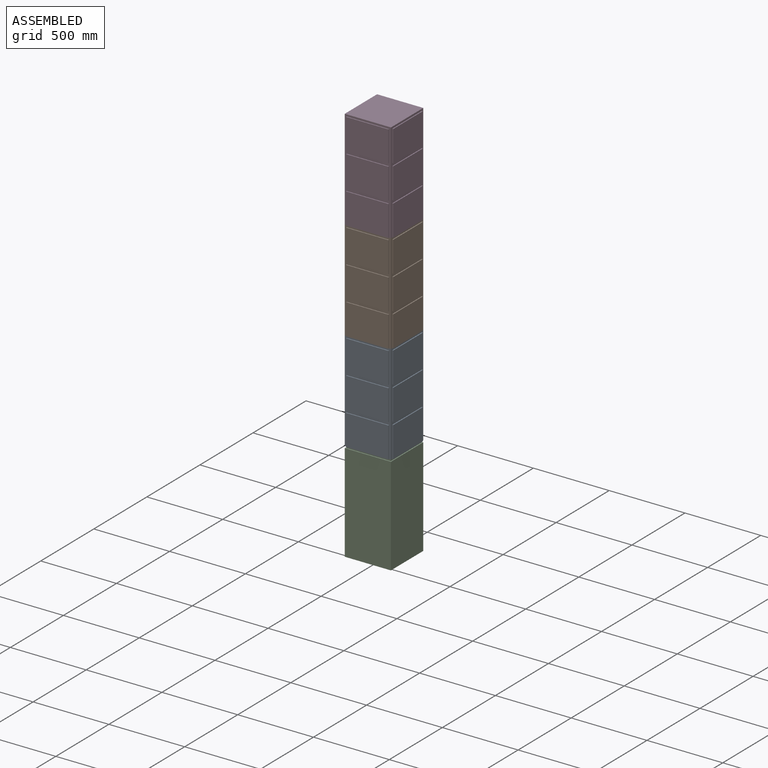
[diagram: assembled view]
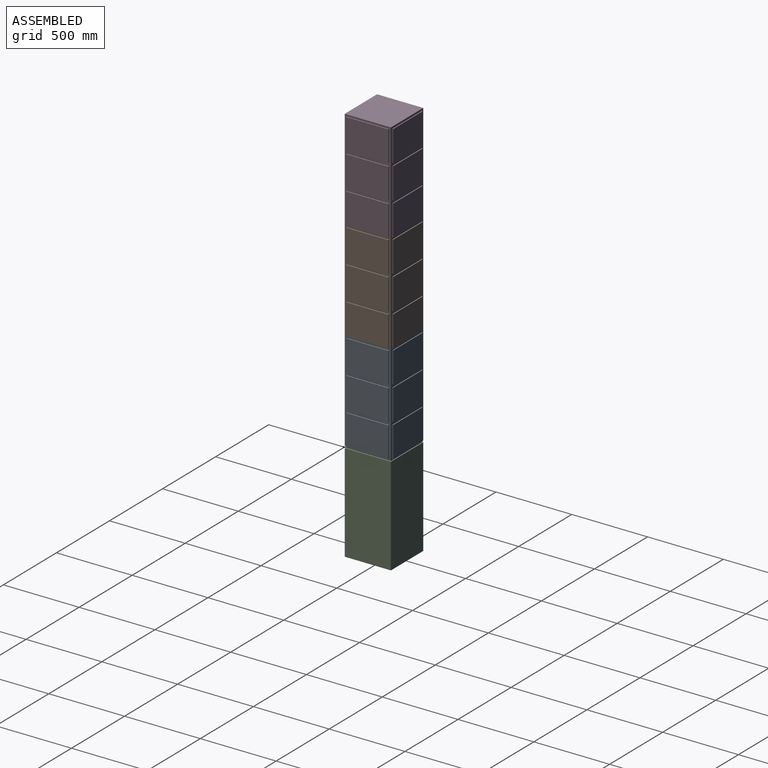
[diagram: assembled view, second angle]
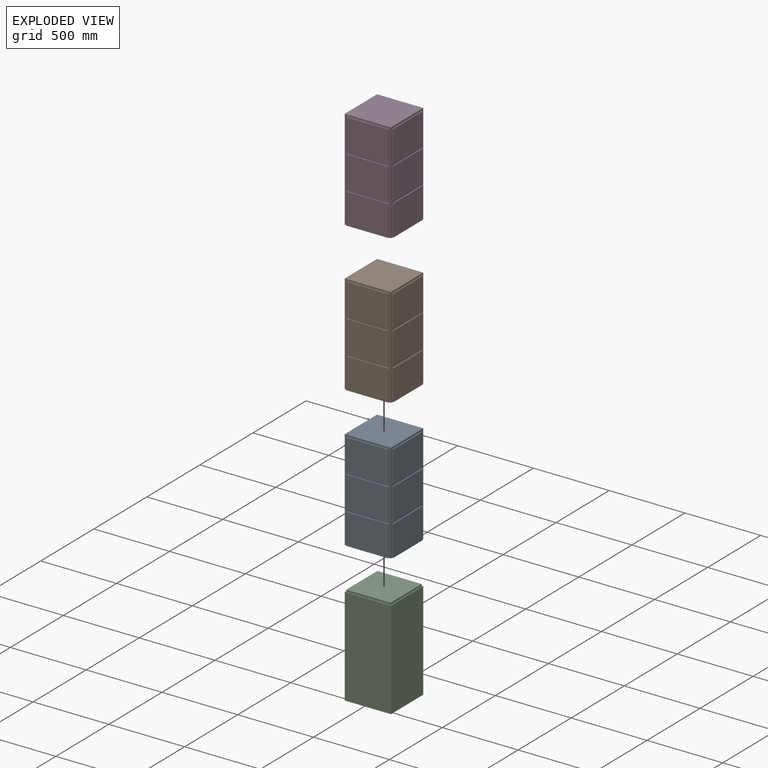
[diagram: exploded view]
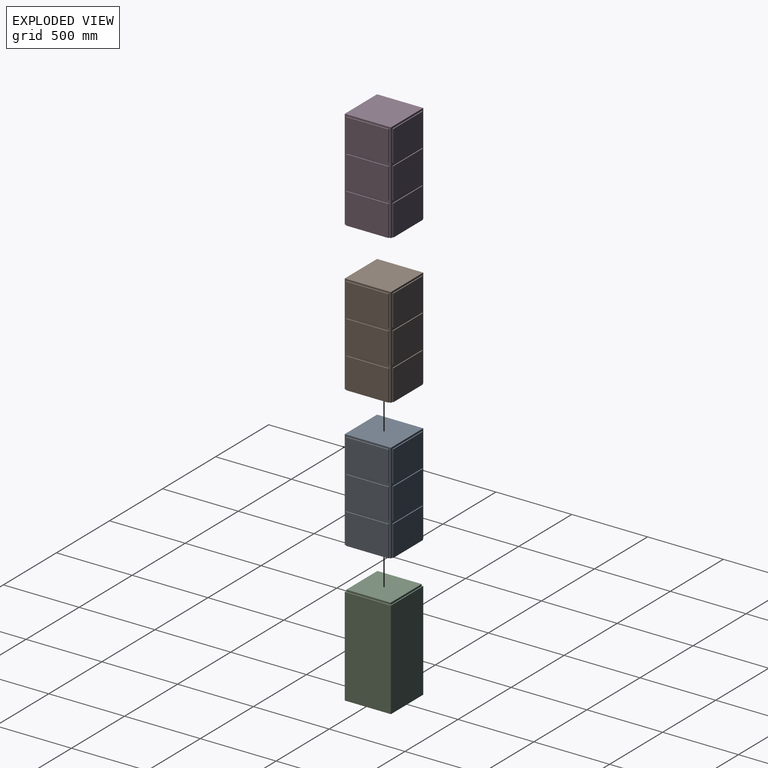
[diagram: exploded view, second angle]
ASSEMBLY  parts=4 mates=3
PART A: 62 faces, bbox 317.5x317.5x660.4 mm
  f0: plane 279.4x6.35mm, normal (0,0,1), area 1774.2mm2, adj f1,f2,f3,f38
  f1: plane 203.2x6.35mm, normal (0,1,0), area 1290.3mm2, adj f0,f3,f38,f41
  f2: plane 203.2x6.35mm, normal (0,-1,0), area 1290.3mm2, adj f0,f3,f38,f41
  f3: plane 279.4x203.2mm, normal (-1,0,0), area 56774.1mm2, adj f0,f1,f2,f41
  f4: plane 279.4x6.35mm, normal (0,0,1), area 1774.2mm2, adj f5,f7,f8,f38
  f5: plane 203.2x6.35mm, normal (0,1,0), area 1290.3mm2, adj f4,f6,f8,f38
  f6: plane 279.4x6.35mm, normal (0,0,-1), area 1774.2mm2, adj f5,f7,f8,f38
  f7: plane 203.2x6.35mm, normal (0,-1,0), area 1290.3mm2, adj f4,f6,f8,f38
  f8: plane 279.4x203.2mm, normal (-1,0,0), area 56774.1mm2, adj f4,f5,f6,f7
  f9: plane 279.4x6.35mm, normal (0,0,1), area 1774.2mm2, adj f10,f11,f12,f18
  f10: plane 203.2x6.35mm, normal (1,0,0), area 1290.3mm2, adj f9,f12,f18,f41
  f11: plane 203.2x6.35mm, normal (-1,0,0), area 1290.3mm2, adj f9,f12,f18,f41
  f12: plane 279.4x203.2mm, normal (0,1,0), area 56774.1mm2, adj f9,f10,f11,f41
  f13: plane 279.4x6.35mm, normal (0,0,1), area 1774.2mm2, adj f14,f16,f17,f18
  f14: plane 203.2x6.35mm, normal (1,0,0), area 1290.3mm2, adj f13,f15,f17,f18
  f15: plane 279.4x6.35mm, normal (0,0,-1), area 1774.2mm2, adj f14,f16,f17,f18
  f16: plane 203.2x6.35mm, normal (-1,0,0), area 1290.3mm2, adj f13,f15,f17,f18
  f17: plane 279.4x203.2mm, normal (0,1,0), area 56774.1mm2, adj f13,f14,f15,f16
  f18: plane 660.4x304.8mm, normal (0,1,0), area 30967.7mm2, adj f9,f10,f11,f13,f14,f15,f16,f28
  f19: plane 279.4x6.35mm, normal (0,0,1), area 1774.2mm2, adj f20,f21,f22,f28
  f20: plane 203.2x6.35mm, normal (0,-1,0), area 1290.3mm2, adj f19,f22,f28,f41
  f21: plane 203.2x6.35mm, normal (0,1,0), area 1290.3mm2, adj f19,f22,f28,f41
  f22: plane 279.4x203.2mm, normal (1,0,0), area 56774.1mm2, adj f19,f20,f21,f41
  f23: plane 279.4x6.35mm, normal (0,0,1), area 1774.2mm2, adj f24,f26,f27,f28
  f24: plane 203.2x6.35mm, normal (0,-1,0), area 1290.3mm2, adj f23,f25,f27,f28
  f25: plane 279.4x6.35mm, normal (0,0,-1), area 1774.2mm2, adj f24,f26,f27,f28
  f26: plane 203.2x6.35mm, normal (0,1,0), area 1290.3mm2, adj f23,f25,f27,f28
  f27: plane 279.4x203.2mm, normal (1,0,0), area 56774.1mm2, adj f23,f24,f25,f26
  f28: plane 660.4x304.8mm, normal (1,0,0), area 30967.7mm2, adj f18,f19,f20,f21,f23,f24,f25,f26
  f29: plane 279.4x6.35mm, normal (0,0,1), area 1774.2mm2, adj f30,f31,f32,f39
  f30: plane 203.2x6.35mm, normal (-1,0,0), area 1290.3mm2, adj f29,f32,f39,f41
  f31: plane 203.2x6.35mm, normal (1,0,0), area 1290.3mm2, adj f29,f32,f39,f41
  f32: plane 279.4x203.2mm, normal (0,-1,0), area 56774.1mm2, adj f29,f30,f31,f41
  f33: plane 279.4x6.35mm, normal (0,0,1), area 1774.2mm2, adj f34,f36,f37,f39
  f34: plane 203.2x6.35mm, normal (-1,0,0), area 1290.3mm2, adj f33,f35,f37,f39
  f35: plane 279.4x6.35mm, normal (0,0,-1), area 1774.2mm2, adj f34,f36,f37,f39
  f36: plane 203.2x6.35mm, normal (1,0,0), area 1290.3mm2, adj f33,f35,f37,f39
  f37: plane 279.4x203.2mm, normal (0,-1,0), area 56774.1mm2, adj f33,f34,f35,f36
  f38: plane 660.4x304.8mm, normal (-1,0,0), area 30967.7mm2, adj f0,f1,f2,f4,f5,f6,f7,f18
  f39: plane 660.4x304.8mm, normal (0,-1,0), area 30967.7mm2, adj f28,f29,f30,f31,f33,f34,f35,f36
  f40: plane 304.8x304.8mm, normal (0,0,1), area 92903mm2, adj f18,f28,f38,f39
  f41: plane 317.5x317.5mm, normal (0,0,-1), area 99999.8mm2, adj f1,f2,f3,f10,f11,f12,f18,f20
  f42: plane 279.4x6.35mm, normal (0,0,1), area 1774.2mm2, adj f39,f43,f45,f46
  f43: plane 203.2x6.35mm, normal (-1,0,0), area 1290.3mm2, adj f39,f42,f44,f46
  f44: plane 279.4x6.35mm, normal (0,0,-1), area 1774.2mm2, adj f39,f43,f45,f46
  f45: plane 203.2x6.35mm, normal (1,0,0), area 1290.3mm2, adj f39,f42,f44,f46
  f46: plane 279.4x203.2mm, normal (0,-1,0), area 56774.1mm2, adj f42,f43,f44,f45
  f47: plane 279.4x6.35mm, normal (0,0,1), area 1774.2mm2, adj f28,f48,f50,f51
  f48: plane 203.2x6.35mm, normal (0,-1,0), area 1290.3mm2, adj f28,f47,f49,f51
  f49: plane 279.4x6.35mm, normal (0,0,-1), area 1774.2mm2, adj f28,f48,f50,f51
  f50: plane 203.2x6.35mm, normal (0,1,0), area 1290.3mm2, adj f28,f47,f49,f51
  f51: plane 279.4x203.2mm, normal (1,0,0), area 56774.1mm2, adj f47,f48,f49,f50
  f52: plane 279.4x6.35mm, normal (0,0,1), area 1774.2mm2, adj f18,f53,f55,f56
  f53: plane 203.2x6.35mm, normal (1,0,0), area 1290.3mm2, adj f18,f52,f54,f56
  f54: plane 279.4x6.35mm, normal (0,0,-1), area 1774.2mm2, adj f18,f53,f55,f56
  f55: plane 203.2x6.35mm, normal (-1,0,0), area 1290.3mm2, adj f18,f52,f54,f56
  f56: plane 279.4x203.2mm, normal (0,1,0), area 56774.1mm2, adj f52,f53,f54,f55
  f57: plane 279.4x6.35mm, normal (0,0,1), area 1774.2mm2, adj f38,f58,f60,f61
  f58: plane 203.2x6.35mm, normal (0,1,0), area 1290.3mm2, adj f38,f57,f59,f61
  f59: plane 279.4x6.35mm, normal (0,0,-1), area 1774.2mm2, adj f38,f58,f60,f61
  f60: plane 203.2x6.35mm, normal (0,-1,0), area 1290.3mm2, adj f38,f57,f59,f61
  f61: plane 279.4x203.2mm, normal (-1,0,0), area 56774.1mm2, adj f57,f58,f59,f60
PART B: same geometry as A
PART C: 11 faces, bbox 304.8x304.8x660.4 mm
  f0: plane 292.1x12.7mm, normal (0,-1,0), area 3709.7mm2, adj f4,f5,f9,f10
  f1: plane 647.7x304.8mm, normal (1,0,0), area 197419mm2, adj f3,f7,f8,f9
  f2: plane 292.1x12.7mm, normal (0,1,0), area 3709.7mm2, adj f4,f5,f9,f10
  f3: plane 647.7x304.8mm, normal (0,1,0), area 197419mm2, adj f1,f6,f8,f9
  f4: plane 292.1x12.7mm, normal (-1,0,0), area 3709.7mm2, adj f0,f2,f5,f9
  f5: plane 292.1x292.1mm, normal (0,0,1), area 85322.4mm2, adj f0,f2,f4,f10
  f6: plane 647.7x304.8mm, normal (-1,0,0), area 197419mm2, adj f3,f7,f8,f9
  f7: plane 647.7x304.8mm, normal (0,-1,0), area 197419mm2, adj f1,f6,f8,f9
  f8: plane 304.8x304.8mm, normal (0,0,-1), area 92903mm2, adj f1,f3,f6,f7
  f9: plane 304.8x304.8mm, normal (0,0,1), area 7580.6mm2, adj f0,f1,f2,f3,f4,f6,f7,f10
  f10: plane 292.1x12.7mm, normal (1,0,0), area 3709.7mm2, adj f0,f2,f5,f9
PART D: same geometry as A
PLACE A t=(720.1,-467.93,361.26)mm
PLACE B t=(720.1,-467.93,1021.66)mm
PLACE C t=(-1545.97,-570.66,-299.14)mm fixed
PLACE D t=(720.1,-467.93,1682.06)mm
MATE fastened B.f40 <-> D.f41  axis (0,0,1) through (71.75,62.13,1682.06)mm
MATE fastened B.f41 <-> A.f40  axis (0,0,-1) through (71.75,62.13,1021.66)mm
MATE fastened C.f5 <-> A.f41  axis (0,0,1) through (71.75,62.13,361.26)mm
